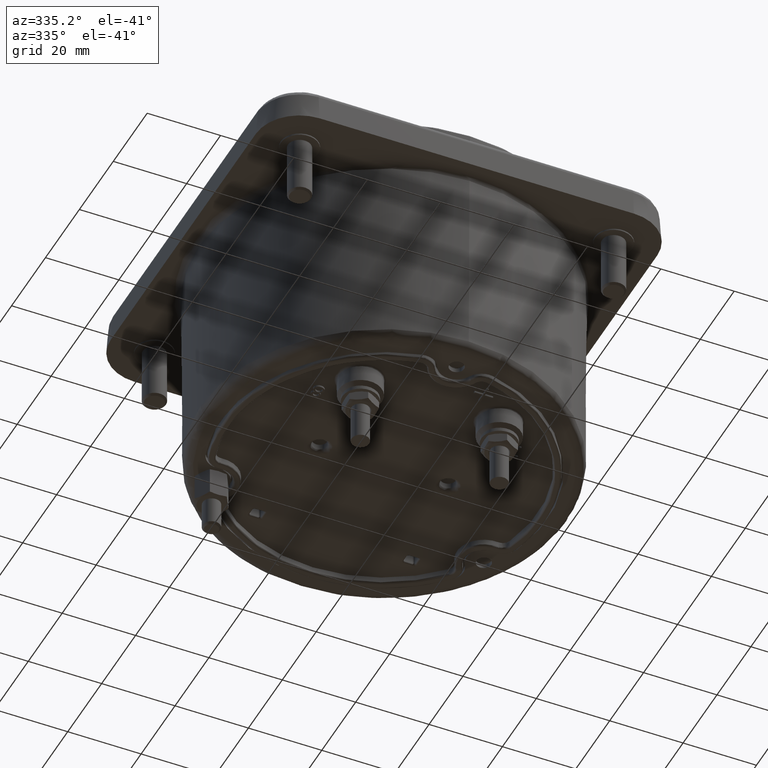
[diagram: clean part render]
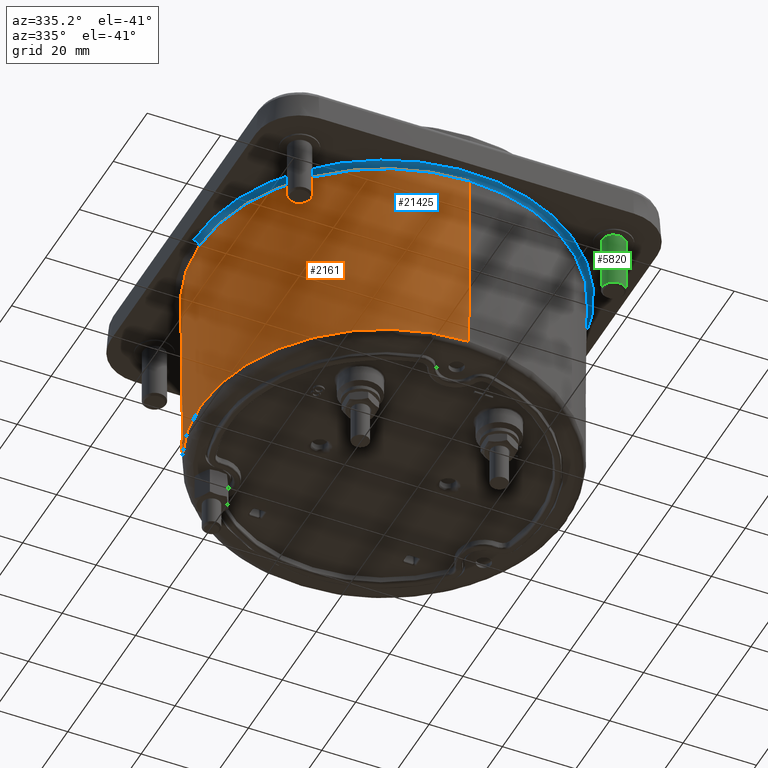
[diagram: same view with three faces highlighted in distinct colors, each labeled with its STEP entity id]
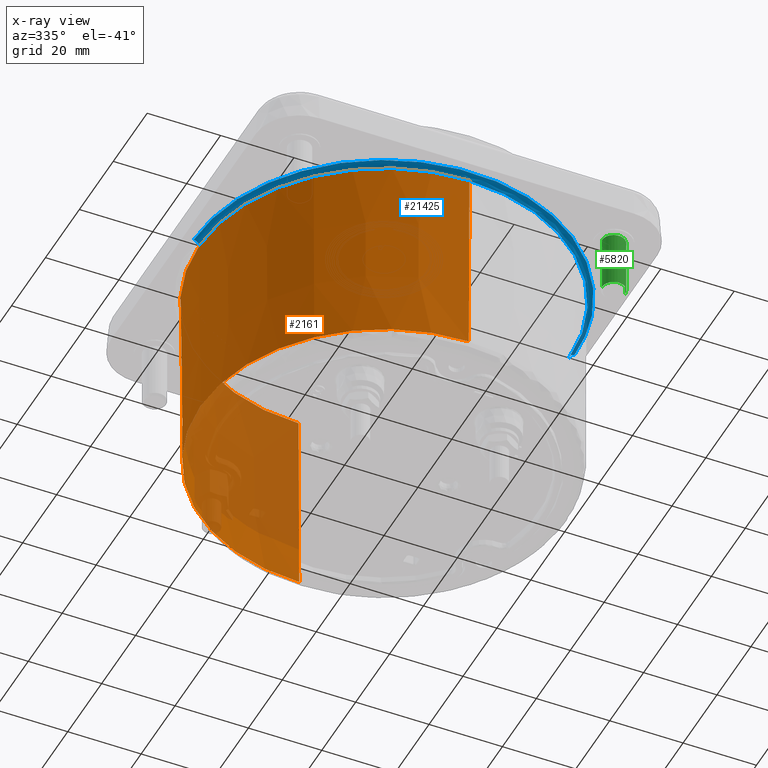
[diagram: x-ray of the same camera — body ghosted, the three highlighted faces saturated]
A machine part, auxiliary view with three faces highlighted in distinct colors.
The next image is the same camera in x-ray (body ghosted, the three faces saturated) — at least one of them is partly hidden behind the body in this view.
Their STEP definitions:

[orange] entity #2161 — the highlighted conical surface has half-angle 0.414 deg.
#9 = CARTESIAN_POINT ( 'NONE',  ( 5.023682837251794677E-15, 1.983827896406455071, 2.011482268730739875 ) ) ;
#344 = DIRECTION ( 'NONE',  ( -4.479769407304705096E-26, 6.885294834831169295E-17, 1.000000000000000000 ) ) ;
#839 = DIRECTION ( 'NONE',  ( -4.479652220600120776E-26, -0.007233083831928652230, 0.9999738409069911516 ) ) ;
#913 = CIRCLE ( 'NONE', #5798, 1.968925488800165491 ) ;
#1561 = CONICAL_SURFACE ( 'NONE', #19376, 1.983827896406452851, 0.007233146902892905600 ) ;
#1978 = LINE ( 'NONE', #9, #18068 ) ;
#2161 = ADVANCED_FACE ( 'NONE', ( #20375 ), #1561, .T. ) ;
#2924 = DIRECTION ( 'NONE',  ( 1.000000000000000000, 6.506301608588673638E-10, 1.377058966966231985E-15 ) ) ;
#3348 = ORIENTED_EDGE ( 'NONE', *, *, #6304, .F. ) ;
#3421 = EDGE_CURVE ( 'NONE', #5361, #12628, #913, .T. ) ;
#3596 = DIRECTION ( 'NONE',  ( 1.000000000000000000, 6.506283845020279635E-10, 4.301193127181230591E-15 ) ) ;
#4073 = AXIS2_PLACEMENT_3D ( 'NONE', #10477, #5033, #3596 ) ;
#4179 = CARTESIAN_POINT ( 'NONE',  ( -1.968925488791601897, -1.281036572047472376E-09, -0.04877558519283541061 ) ) ;
#4569 = DIRECTION ( 'NONE',  ( -0.000000000000000000, -0.000000000000000000, -1.000000000000000000 ) ) ;
#5033 = DIRECTION ( 'NONE',  ( 0.000000000000000000, 0.000000000000000000, 1.000000000000000000 ) ) ;
#5081 = EDGE_CURVE ( 'NONE', #12628, #5197, #12650, .T. ) ;
#5197 = VERTEX_POINT ( 'NONE', #8662 ) ;
#5261 = CARTESIAN_POINT ( 'NONE',  ( 4.755600987370747928E-15, 2.237929876409763545E-15, 2.011482268730736322 ) ) ;
#5361 = VERTEX_POINT ( 'NONE', #4179 ) ;
#5668 = AXIS2_PLACEMENT_3D ( 'NONE', #19552, #4569, #2924 ) ;
#5798 = AXIS2_PLACEMENT_3D ( 'NONE', #15067, #16291, #14641 ) ;
#6304 = EDGE_CURVE ( 'NONE', #19982, #7760, #1978, .T. ) ;
#7118 = DIRECTION ( 'NONE',  ( 1.000000000000000000, 6.506283845020280669E-10, 1.377058966966231985E-15 ) ) ;
#7760 = VERTEX_POINT ( 'NONE', #21232 ) ;
#8662 = CARTESIAN_POINT ( 'NONE',  ( 4.780733988912455801E-15, -1.983827896406450630, 2.011482268730736322 ) ) ;
#9351 = VECTOR ( 'NONE', #839, 39.37007874015748143 ) ;
#9870 = ORIENTED_EDGE ( 'NONE', *, *, #12022, .T. ) ;
#10210 = ORIENTED_EDGE ( 'NONE', *, *, #17920, .T. ) ;
#10477 = CARTESIAN_POINT ( 'NONE',  ( 4.755600987370747928E-15, 2.237929876409763545E-15, -0.04877558519283117788 ) ) ;
#10786 = CARTESIAN_POINT ( 'NONE',  ( -1.983827896406448188, -1.309943466930820863E-09, 2.011482268730736322 ) ) ;
#10881 = ORIENTED_EDGE ( 'NONE', *, *, #3421, .T. ) ;
#11714 = DIRECTION ( 'NONE',  ( 8.857972514770755345E-19, 0.007233083831928788406, 0.9999738409069911516 ) ) ;
#11763 = CARTESIAN_POINT ( 'NONE',  ( 5.022770328009211004E-15, 1.968925488800167489, -0.04877558519283117788 ) ) ;
#11936 = DIRECTION ( 'NONE',  ( 0.000000000000000000, -1.000000000000000000, 1.377058966966232133E-16 ) ) ;
#12022 = EDGE_CURVE ( 'NONE', #18108, #7760, #16486, .T. ) ;
#12046 = CARTESIAN_POINT ( 'NONE',  ( 4.780733988912455801E-15, 2.237929876356846361E-15, 2.011482268730740319 ) ) ;
#12628 = VERTEX_POINT ( 'NONE', #16502 ) ;
#12650 = LINE ( 'NONE', #17682, #9351 ) ;
#13612 = ORIENTED_EDGE ( 'NONE', *, *, #5081, .T. ) ;
#13657 = ORIENTED_EDGE ( 'NONE', *, *, #15062, .T. ) ;
#14641 = DIRECTION ( 'NONE',  ( 1.000000000000000000, 6.506283845020279635E-10, 4.301193127181230591E-15 ) ) ;
#15062 = EDGE_CURVE ( 'NONE', #19982, #5361, #20866, .T. ) ;
#15067 = CARTESIAN_POINT ( 'NONE',  ( 4.755600987370747928E-15, 2.237929876409763545E-15, -0.04877558519283117788 ) ) ;
#16291 = DIRECTION ( 'NONE',  ( 0.000000000000000000, 0.000000000000000000, 1.000000000000000000 ) ) ;
#16339 = AXIS2_PLACEMENT_3D ( 'NONE', #5261, #20471, #7118 ) ;
#16486 = CIRCLE ( 'NONE', #5668, 1.983827896406452851 ) ;
#16502 = CARTESIAN_POINT ( 'NONE',  ( 4.780733988958603375E-15, -1.968925488800163270, -0.04877558519283117788 ) ) ;
#17368 = EDGE_LOOP ( 'NONE', ( #3348, #13657, #10881, #13612, #10210, #9870 ) ) ;
#17682 = CARTESIAN_POINT ( 'NONE',  ( 4.780733988912455801E-15, -1.983827896406450630, 2.011482268730740319 ) ) ;
#17920 = EDGE_CURVE ( 'NONE', #5197, #18108, #19828, .T. ) ;
#18068 = VECTOR ( 'NONE', #11714, 39.37007874015748143 ) ;
#18108 = VERTEX_POINT ( 'NONE', #10786 ) ;
#19376 = AXIS2_PLACEMENT_3D ( 'NONE', #12046, #344, #11936 ) ;
#19552 = CARTESIAN_POINT ( 'NONE',  ( 4.755600987370747928E-15, 2.237929876409763545E-15, 2.011482268730736322 ) ) ;
#19828 = CIRCLE ( 'NONE', #16339, 1.983827896406452851 ) ;
#19982 = VERTEX_POINT ( 'NONE', #11763 ) ;
#20375 = FACE_OUTER_BOUND ( 'NONE', #17368, .T. ) ;
#20471 = DIRECTION ( 'NONE',  ( -0.000000000000000000, -0.000000000000000000, -1.000000000000000000 ) ) ;
#20866 = CIRCLE ( 'NONE', #4073, 1.968925488800165491 ) ;
#21232 = CARTESIAN_POINT ( 'NONE',  ( 5.023682837251794677E-15, 1.983827896406455071, 2.011482268730736322 ) ) ;

[blue] entity #21425 — the highlighted face is a freeform B-spline surface patch.
#23 = CARTESIAN_POINT ( 'NONE',  ( 2.003332604841752573, -0.4001849927164023435, 2.070110236220471744 ) ) ;
#133 = CARTESIAN_POINT ( 'NONE',  ( 0.7442685582431227687, -1.902480896312771952, 2.070110236220472189 ) ) ;
#215 = CARTESIAN_POINT ( 'NONE',  ( 1.983827899026260333, -3.967655791541200294, 2.011482268730736767 ) ) ;
#243 = CARTESIAN_POINT ( 'NONE',  ( 1.876533583576798003, -0.8077928446503455095, 2.070110236220472189 ) ) ;
#928 = CARTESIAN_POINT ( 'NONE',  ( -0.6903791625251196606, -1.923832779437931517, 2.070110236220472189 ) ) ;
#1045 = CARTESIAN_POINT ( 'NONE',  ( -0.3737647796328769645, -2.008398766474842834, 2.070110236220472189 ) ) ;
#1152 = CARTESIAN_POINT ( 'NONE',  ( -0.9710378116248836733, -1.799681934347626466, 2.070110236220472189 ) ) ;
#1222 =( BOUNDED_SURFACE ( )  B_SPLINE_SURFACE ( 3, 3, ( 
 ( #18264, #9951, #13658, #13340 ),
 ( #11914, #8427, #18369, #10065 ),
 ( #3287, #18474, #20352, #5357 ),
 ( #1862, #215, #20029, #20135 ) ),
 .UNSPECIFIED., .F., .F., .T. ) 
 B_SPLINE_SURFACE_WITH_KNOTS ( ( 4, 4 ),
 ( 4, 4 ),
 ( 0.000000000000000000, 1.000000000000000000 ),
 ( 0.000000000000000000, 1.000000000000000000 ),
 .UNSPECIFIED. ) 
 GEOMETRIC_REPRESENTATION_ITEM ( )  RATIONAL_B_SPLINE_SURFACE ( (
 ( 1.000000000000000000, 0.3333333333301054524, 0.3333333333301054524, 1.000000000000000000),
 ( 0.8064396365958963475, 0.2688132121960290499, 0.2688132121960290499, 0.8064396365958963475),
 ( 0.8064396365958963475, 0.2688132121960290499, 0.2688132121960290499, 0.8064396365958963475),
 ( 1.000000000000000000, 0.3333333333301054524, 0.3333333333301054524, 1.000000000000000000) ) ) 
 REPRESENTATION_ITEM ( '' )  SURFACE ( )  );
#1249 = CARTESIAN_POINT ( 'NONE',  ( -2.011224293276880015, -0.3582861049801179254, 2.070110236220472189 ) ) ;
#1357 = CARTESIAN_POINT ( 'NONE',  ( -0.3788520813355275574, -2.007446990985253699, 2.070110236220472189 ) ) ;
#1456 = CARTESIAN_POINT ( 'NONE',  ( 1.105221622687248217, -1.718104688078582853, 2.070110236220472189 ) ) ;
#1559 = CARTESIAN_POINT ( 'NONE',  ( 0.7481225039808152566, -1.900968610835486627, 2.070110236220472633 ) ) ;
#1678 = CARTESIAN_POINT ( 'NONE',  ( 0.3448347633429154624, -2.013594818917828544, 2.070110236220471744 ) ) ;
#1783 = CARTESIAN_POINT ( 'NONE',  ( 0.3707111310161312345, -2.008964654954927820, 2.070110236220472189 ) ) ;
#1862 = CARTESIAN_POINT ( 'NONE',  ( 1.983827896406368252, 1.309948231300291511E-09, 2.011482268730736767 ) ) ;
#1890 = CARTESIAN_POINT ( 'NONE',  ( 1.955788023540896425, -0.5966525252301194682, 2.070110236220472633 ) ) ;
#2579 = CARTESIAN_POINT ( 'NONE',  ( -1.121571604575167358, -1.707467909705093767, 2.070110236220472633 ) ) ;
#2695 = CARTESIAN_POINT ( 'NONE',  ( -2.013594557046480382, -0.3448361785432085824, 2.070110236220472189 ) ) ;
#2803 = CARTESIAN_POINT ( 'NONE',  ( -1.394678649436074336, -1.494393066035612838, 2.070110236220473077 ) ) ;
#2871 = CARTESIAN_POINT ( 'NONE',  ( 2.042881469688273555, 1.329159158463107903E-09, 2.011055118110236517 ) ) ;
#2907 = CARTESIAN_POINT ( 'NONE',  ( -1.125251828600355886, -1.705044946876235423, 2.070110236220472633 ) ) ;
#3005 = CARTESIAN_POINT ( 'NONE',  ( -0.4285437248690475709, -1.997551800392993959, 2.070110236220472189 ) ) ;
#3104 = CARTESIAN_POINT ( 'NONE',  ( 2.008018959206372855, -0.3757999609761855098, 2.070110236220472189 ) ) ;
#3206 = CARTESIAN_POINT ( 'NONE',  ( 0.7499681759424581262, -1.900241300414075463, 2.070110236220472189 ) ) ;
#3281 = CARTESIAN_POINT ( 'NONE',  ( -2.042881469688264673, -1.329153877629970610E-09, 2.070110236220472189 ) ) ;
#3287 = CARTESIAN_POINT ( 'NONE',  ( 1.984076682767186295, 1.310112507998461509E-09, 2.045876983112522307 ) ) ;
#3312 = CARTESIAN_POINT ( 'NONE',  ( 1.235916453043782726, -1.632717692842917234, 2.070110236220473077 ) ) ;
#3426 = CARTESIAN_POINT ( 'NONE',  ( 0.1557875424540580700, -2.038619442716527175, 2.070110236220472189 ) ) ;
#3530 = CARTESIAN_POINT ( 'NONE',  ( 0.5332552053338290854, -1.974016218238910048, 2.070110236220473077 ) ) ;
#4283 = CARTESIAN_POINT ( 'NONE',  ( 2.042881469688272222, 1.329156158074610405E-09, 2.070110236220472189 ) ) ;
#4331 = CARTESIAN_POINT ( 'NONE',  ( -2.010010018804857967, -0.3650084123850552142, 2.070110236220472189 ) ) ;
#4442 = CARTESIAN_POINT ( 'NONE',  ( -1.773291169850150784, -1.015356528543466474, 2.070110236220471744 ) ) ;
#4518 = DIRECTION ( 'NONE',  ( 6.506285069667078454E-10, -1.000000000000000000, 0.000000000000000000 ) ) ;
#4552 = CARTESIAN_POINT ( 'NONE',  ( -2.009483370619587816, -0.3678888321699896879, 2.070110236220472189 ) ) ;
#4652 = CARTESIAN_POINT ( 'NONE',  ( -1.712240843068142171, -1.114271336729472539, 2.070110236220472189 ) ) ;
#4748 = CARTESIAN_POINT ( 'NONE',  ( 0.3179124374540432951, -2.018102432714424133, 2.070110236220472633 ) ) ;
#4857 = CARTESIAN_POINT ( 'NONE',  ( 0.3698088781557154481, -2.009130903961321213, 2.070110236220472189 ) ) ;
#4967 = CARTESIAN_POINT ( 'NONE',  ( 1.494393066037198459, -1.394678649433133799, 2.070110236220472633 ) ) ;
#5070 = CARTESIAN_POINT ( 'NONE',  ( 2.008598695396134559, -0.3726887335864145223, 2.070110236220472189 ) ) ;
#5174 = CARTESIAN_POINT ( 'NONE',  ( 2.042880192834984676, -0.1249387673874906429, 2.070110236220472633 ) ) ;
#5197 = VERTEX_POINT ( 'NONE', #8662 ) ;
#5227 = AXIS2_PLACEMENT_3D ( 'NONE', #13694, #18515, #8784 ) ;
#5261 = CARTESIAN_POINT ( 'NONE',  ( 4.755600987370747928E-15, 2.237929876409763545E-15, 2.011482268730736322 ) ) ;
#5357 = CARTESIAN_POINT ( 'NONE',  ( -1.984076682767176747, -1.290894854865708978E-09, 2.045876983112522307 ) ) ;
#5612 = CIRCLE ( 'NONE', #17492, 0.05905511811023627516 ) ;
#5971 = CARTESIAN_POINT ( 'NONE',  ( -2.042881469647618076, -0.06247283608517428810, 2.070110236220472633 ) ) ;
#6080 = CARTESIAN_POINT ( 'NONE',  ( -2.018101943887906646, -0.3179150791612647131, 2.070110236220472189 ) ) ;
#6121 = CARTESIAN_POINT ( 'NONE',  ( 1.983827896406457514, 1.309948189355410421E-09, 2.011482268730736322 ) ) ;
#6193 = CARTESIAN_POINT ( 'NONE',  ( -1.996722619072802463, -0.4368693160643514761, 2.070110236220472189 ) ) ;
#6391 = CARTESIAN_POINT ( 'NONE',  ( -1.130765448198850942, -1.701402250907160463, 2.070110236220472633 ) ) ;
#6491 = CARTESIAN_POINT ( 'NONE',  ( 1.092514872302773110, -1.726242185399991413, 2.070110236220472633 ) ) ;
#6606 = CARTESIAN_POINT ( 'NONE',  ( 0.6433872528040760486, -1.939430170087698135, 2.070110236220472189 ) ) ;
#6717 = CARTESIAN_POINT ( 'NONE',  ( 2.007446990985332302, -0.3788520813354092631, 2.070110236220471744 ) ) ;
#6824 = CARTESIAN_POINT ( 'NONE',  ( 1.893845591453264587, -0.7659944184719689186, 2.070110236220472633 ) ) ;
#6932 = CARTESIAN_POINT ( 'NONE',  ( 1.639883210596662311, -1.219175707345041992, 2.070110236220472189 ) ) ;
#7118 = DIRECTION ( 'NONE',  ( 1.000000000000000000, 6.506283845020280669E-10, 1.377058966966231985E-15 ) ) ;
#7441 = EDGE_CURVE ( 'NONE', #9128, #5197, #17811, .T. ) ;
#7603 = CARTESIAN_POINT ( 'NONE',  ( -0.3757999609762522342, -2.008018959206323117, 2.070110236220472189 ) ) ;
#7714 = CARTESIAN_POINT ( 'NONE',  ( -0.3726887335863753314, -2.008598695396127454, 2.070110236220472189 ) ) ;
#7826 = CARTESIAN_POINT ( 'NONE',  ( -1.544248719439014428, -1.344819891879077467, 2.070110236220472189 ) ) ;
#7929 = CARTESIAN_POINT ( 'NONE',  ( -2.038618325398769304, -0.1557935806420024105, 2.070110236220472633 ) ) ;
#8031 = CARTESIAN_POINT ( 'NONE',  ( -1.316454797519543085, -1.564954769511171184, 2.070110236220472189 ) ) ;
#8069 = ORIENTED_EDGE ( 'NONE', *, *, #19418, .F. ) ;
#8134 = CARTESIAN_POINT ( 'NONE',  ( 1.984978912902296111, -0.4849692473790852554, 2.070110236220471744 ) ) ;
#8237 = CARTESIAN_POINT ( 'NONE',  ( 1.110653324258300323, -1.714590005561088093, 2.070110236220472189 ) ) ;
#8346 = CARTESIAN_POINT ( 'NONE',  ( 1.114271336729285355, -1.712240843068210117, 2.070110236220472633 ) ) ;
#8427 = CARTESIAN_POINT ( 'NONE',  ( 2.008485858200872887, -4.016971709809492808, 2.070110236220473521 ) ) ;
#8452 = CARTESIAN_POINT ( 'NONE',  ( 1.701402250907502856, -1.130765448198228329, 2.070110236220472189 ) ) ;
#8560 = CARTESIAN_POINT ( 'NONE',  ( 0.4368693160652958873, -1.996722619072617277, 2.070110236220473077 ) ) ;
#8593 = DIRECTION ( 'NONE',  ( -1.000000000000000000, -6.506283845020274466E-10, 0.000000000000000000 ) ) ;
#8662 = CARTESIAN_POINT ( 'NONE',  ( 4.780733988912455801E-15, -1.983827896406450630, 2.011482268730736322 ) ) ;
#8784 = DIRECTION ( 'NONE',  ( 1.000000000000000000, 6.506283845020280669E-10, 1.377058966966231985E-15 ) ) ;
#8800 = EDGE_CURVE ( 'NONE', #14826, #9128, #5612, .T. ) ;
#9128 = VERTEX_POINT ( 'NONE', #6121 ) ;
#9232 = CARTESIAN_POINT ( 'NONE',  ( -2.026184154779658186, -0.2639878943648609755, 2.070110236220473077 ) ) ;
#9290 = EDGE_CURVE ( 'NONE', #13581, #18108, #19618, .T. ) ;
#9350 = CARTESIAN_POINT ( 'NONE',  ( -1.920113334217594447, -0.6978737373693809642, 2.070110236220472189 ) ) ;
#9452 = CARTESIAN_POINT ( 'NONE',  ( -1.974016218239233567, -0.5332552053321805152, 2.070110236220471744 ) ) ;
#9561 = CARTESIAN_POINT ( 'NONE',  ( -0.7799711020609035872, -1.888159406802952356, 2.070110236220473077 ) ) ;
#9663 = CARTESIAN_POINT ( 'NONE',  ( -0.3859691339166563817, -2.006096597241381563, 2.070110236220473077 ) ) ;
#9768 = CARTESIAN_POINT ( 'NONE',  ( 0.2639833657239055720, -2.026184992767976034, 2.070110236220472189 ) ) ;
#9951 = CARTESIAN_POINT ( 'NONE',  ( 2.042881472386154140, -4.085762938067161620, 2.070110236220472633 ) ) ;
#9980 = CARTESIAN_POINT ( 'NONE',  ( 1.015356528539348213, -1.773291169851531013, 2.070110236220472189 ) ) ;
#10065 = CARTESIAN_POINT ( 'NONE',  ( -2.008485855548407528, -1.306776161497914866E-09, 2.070110236220473521 ) ) ;
#10092 = CARTESIAN_POINT ( 'NONE',  ( 1.705044946876436374, -1.125251828599996395, 2.070110236220472189 ) ) ;
#10198 = CARTESIAN_POINT ( 'NONE',  ( 1.852268121428690906, -0.8629098314627251520, 2.070110236220472633 ) ) ;
#10786 = CARTESIAN_POINT ( 'NONE',  ( -1.983827896406448188, -1.309943466930820863E-09, 2.011482268730736322 ) ) ;
#10840 = DIRECTION ( 'NONE',  ( 1.000000000000000000, 6.506285069667073284E-10, 0.000000000000000000 ) ) ;
#10878 = CARTESIAN_POINT ( 'NONE',  ( -0.8629098314598024899, -1.852268121430152847, 2.070110236220472189 ) ) ;
#10991 = CARTESIAN_POINT ( 'NONE',  ( -1.742263465831014102, -1.066970251328139607, 2.070110236220472189 ) ) ;
#11108 = CARTESIAN_POINT ( 'NONE',  ( -1.904740289654653695, -0.7384850524079445977, 2.070110236220472189 ) ) ;
#11210 = CARTESIAN_POINT ( 'NONE',  ( -1.900241300414105661, -0.7499681759423524330, 2.070110236220472189 ) ) ;
#11309 = CARTESIAN_POINT ( 'NONE',  ( -1.711088321330249240, -1.116040419668405281, 2.070110236220472189 ) ) ;
#11410 = CARTESIAN_POINT ( 'NONE',  ( 1.799681934345674028, -0.9710378116287806671, 2.070110236220472189 ) ) ;
#11513 = CARTESIAN_POINT ( 'NONE',  ( 0.6978737373701058289, -1.920113334217454337, 2.070110236220472189 ) ) ;
#11619 = CARTESIAN_POINT ( 'NONE',  ( 1.708702197063427297, -1.119690164145878075, 2.070110236220472189 ) ) ;
#11836 = CARTESIAN_POINT ( 'NONE',  ( 0.3650080408949836763, -2.010010087546085789, 2.070110236220471744 ) ) ;
#11914 = CARTESIAN_POINT ( 'NONE',  ( 2.008485855548416854, 1.326230185416033774E-09, 2.070110236220473521 ) ) ;
#11916 = ORIENTED_EDGE ( 'NONE', *, *, #8800, .F. ) ;
#12629 = CARTESIAN_POINT ( 'NONE',  ( -1.831287150513315254, -0.9100311596427431704, 2.070110236220472189 ) ) ;
#12741 = CARTESIAN_POINT ( 'NONE',  ( -2.009130884087158009, -0.3698089855593023056, 2.070110236220472633 ) ) ;
#12856 = CARTESIAN_POINT ( 'NONE',  ( -0.8077928446486398739, -1.876533583577645992, 2.070110236220472189 ) ) ;
#12950 = CARTESIAN_POINT ( 'NONE',  ( -1.909948963333746308, -0.7249720948604549964, 2.070110236220472189 ) ) ;
#13032 = ORIENTED_EDGE ( 'NONE', *, *, #7441, .F. ) ;
#13054 = CARTESIAN_POINT ( 'NONE',  ( -1.219175707348902682, -1.639883210594581753, 2.070110236220472189 ) ) ;
#13149 = CARTESIAN_POINT ( 'NONE',  ( 2.031511808129810248, -0.2488762166883420890, 2.070110236220472189 ) ) ;
#13257 = CARTESIAN_POINT ( 'NONE',  ( 0.8161558320137728417, -1.874038972725468932, 2.070110236220472189 ) ) ;
#13340 = CARTESIAN_POINT ( 'NONE',  ( -2.042881469688264673, -1.329154932784181112E-09, 2.070110236220472633 ) ) ;
#13474 = CARTESIAN_POINT ( 'NONE',  ( 2.006096597241529889, -0.3859691339164213475, 2.070110236220472189 ) ) ;
#13579 = CARTESIAN_POINT ( 'NONE',  ( 1.747656180639997725, -1.060108662984764472, 2.070110236220472189 ) ) ;
#13581 = VERTEX_POINT ( 'NONE', #3281 ) ;
#13658 = CARTESIAN_POINT ( 'NONE',  ( -2.042881467029950660, -4.085762940745258476, 2.070110236220472633 ) ) ;
#13694 = CARTESIAN_POINT ( 'NONE',  ( 4.755600987370747928E-15, 2.237929876409763545E-15, 2.011482268730736322 ) ) ;
#14369 = CARTESIAN_POINT ( 'NONE',  ( -0.2488762166930676978, -2.031511808129802699, 2.070110236220472633 ) ) ;
#14478 = CARTESIAN_POINT ( 'NONE',  ( -2.042881469688264673, -1.329153877629970610E-09, 2.070110236220472189 ) ) ;
#14587 = CARTESIAN_POINT ( 'NONE',  ( -1.900968610835496175, -0.7481225039807496424, 2.070110236220471744 ) ) ;
#14681 = CARTESIAN_POINT ( 'NONE',  ( -0.4001849927168594223, -2.003332604841471021, 2.070110236220472189 ) ) ;
#14787 = CARTESIAN_POINT ( 'NONE',  ( 0.7249720948608480153, -1.909948963333672145, 2.070110236220472189 ) ) ;
#14826 = VERTEX_POINT ( 'NONE', #4283 ) ;
#14895 = CARTESIAN_POINT ( 'NONE',  ( 1.116040419668381967, -1.711088321330239914, 2.070110236220472189 ) ) ;
#15006 = CARTESIAN_POINT ( 'NONE',  ( 1.997551800393515542, -0.4285437248681934208, 2.070110236220472189 ) ) ;
#15113 = CARTESIAN_POINT ( 'NONE',  ( 0.9100311596372501199, -1.831287150515155115, 2.070110236220472189 ) ) ;
#15217 = CARTESIAN_POINT ( 'NONE',  ( 0.06246938569206661462, -2.042882108114909112, 2.070110236220472633 ) ) ;
#15761 = ORIENTED_EDGE ( 'NONE', *, *, #9290, .T. ) ;
#15892 = CARTESIAN_POINT ( 'NONE',  ( -0.7538986943150615128, -1.898685244963399299, 2.070110236220472189 ) ) ;
#16011 = CARTESIAN_POINT ( 'NONE',  ( -1.169031679863243411, -1.675499044560103012, 2.070110236220472633 ) ) ;
#16117 = CARTESIAN_POINT ( 'NONE',  ( -1.119690164145946687, -1.708702197063385553, 2.070110236220472189 ) ) ;
#16226 = CARTESIAN_POINT ( 'NONE',  ( -0.7559844347403924525, -1.897855857671596924, 2.070110236220473077 ) ) ;
#16338 = CARTESIAN_POINT ( 'NONE',  ( -0.7599903085841351880, -1.896255371954701952, 2.070110236220472633 ) ) ;
#16339 = AXIS2_PLACEMENT_3D ( 'NONE', #5261, #20471, #7118 ) ;
#16438 = CARTESIAN_POINT ( 'NONE',  ( 1.707467909705198572, -1.121571604574985948, 2.070110236220472633 ) ) ;
#16445 = AXIS2_PLACEMENT_3D ( 'NONE', #20524, #19085, #8593 ) ;
#16537 = CARTESIAN_POINT ( 'NONE',  ( 1.066970251325741303, -1.742263465831821456, 2.070110236220472189 ) ) ;
#16649 = CARTESIAN_POINT ( 'NONE',  ( 1.898685244963387087, -0.7538986943150971509, 2.070110236220472189 ) ) ;
#16744 = CARTESIAN_POINT ( 'NONE',  ( 0.3678886186263803371, -2.009483410134102144, 2.070110236220472189 ) ) ;
#16825 = FACE_OUTER_BOUND ( 'NONE', #20554, .T. ) ;
#16851 = CARTESIAN_POINT ( 'NONE',  ( 1.888159406802500051, -0.7799711020618169677, 2.070110236220471744 ) ) ;
#17087 = B_SPLINE_CURVE_WITH_KNOTS ( 'NONE', 3,
 ( #14478, #5971, #7929, #9232, #6080, #2695, #1249, #4331, #4552, #12741, #19305, #6193, #9452, #17543, #9350, #12950, #11108, #21191, #14587, #11210, #19633, #12629, #4442, #10991, #19419, #17774, #17883, #4652, #11309, #19733, #7826, #2803, #8031, #13054, #16011, #21291, #6391, #2907, #2579, #16117, #21386, #1152, #10878, #12856, #9561, #19535, #16338, #16226, #15892, #928, #17659, #17982, #3005, #14681, #9663, #1357, #7603, #1045, #7714, #14369, #21083, #15217, #3426, #9768, #4748, #1678, #18500, #11836, #16744, #4857, #1783, #8560, #3530, #6606, #11513, #14787, #20163, #133, #1559, #3206, #13257, #15113, #9980, #16537, #6491, #1456, #8237, #8346, #14895, #3312, #21600, #4967, #20055, #6932, #18188, #19946, #8452, #10092, #16438, #11619, #13579, #11410, #10198, #243, #16851, #6824, #18087, #18397, #16649, #18291, #1890, #8134, #15006, #23, #13474, #6717, #3104, #21491, #5070, #13149, #5174, #19842 ),
 .UNSPECIFIED., .F., .F.,
 ( 4, 1, 1, 1, 1, 1, 1, 2, 2, 1, 1, 1, 1, 1, 2, 2, 1, 1, 1, 1, 1, 2, 2, 2, 1, 1, 1, 1, 1, 2, 2, 1, 1, 1, 1, 1, 2, 2, 1, 1, 1, 1, 1, 1, 2, 2, 2, 1, 1, 1, 1, 1, 1, 2, 2, 1, 1, 1, 1, 1, 2, 2, 1, 1, 1, 1, 1, 2, 2, 2, 1, 1, 1, 1, 1, 2, 2, 1, 1, 1, 1, 1, 2, 2, 1, 1, 1, 1, 1, 1, 2, 2, 4 ),
 ( 0.000000000000000000, 0.01562499999999998959, 0.02343749999999998612, 0.02734374999999998265, 0.02929687499999998612, 0.03027343749999997918, 0.03076171874999997224, 0.03100585937499996877, 0.03124999999999996531, 0.04687499999999943101, 0.05468749999999916039, 0.05859374999999904937, 0.06054687499999899386, 0.06152343749999896610, 0.06201171874999895223, 0.06249999999999893835, 0.07812499999999827915, 0.08593749999999797384, 0.08984374999999782119, 0.09179687499999771017, 0.09277343749999765465, 0.09326171874999764078, 0.09374999999999762690, 0.1249999999999960865, 0.1406249999999953371, 0.1484374999999949485, 0.1523437499999947542, 0.1542968749999946709, 0.1552734374999946709, 0.1557617187499946709, 0.1562499999999946709, 0.1718749999999949762, 0.1796874999999951428, 0.1835937499999952260, 0.1855468749999952538, 0.1865234374999952816, 0.1870117187499952816, 0.1874999999999952816, 0.2031249999999949485, 0.2109374999999948097, 0.2148437499999947542, 0.2167968749999947264, 0.2177734374999947264, 0.2182617187499947264, 0.2185058593749947264, 0.2187499999999947264, 0.2499999999999947264, 0.2656249999999947264, 0.2734374999999947264, 0.2773437499999947264, 0.2792968749999947264, 0.2802734374999947264, 0.2807617187499947264, 0.2810058593749947264, 0.2812499999999947264, 0.2968749999999952260, 0.3046874999999955036, 0.3085937499999956701, 0.3105468749999957256, 0.3115234374999957812, 0.3120117187499957812, 0.3124999999999957812, 0.3281249999999961142, 0.3359374999999962808, 0.3398437499999963363, 0.3417968749999963918, 0.3427734374999963918, 0.3432617187499963918, 0.3437499999999963918, 0.3749999999999966138, 0.3906249999999967248, 0.3984374999999967804, 0.4023437499999967804, 0.4042968749999967804, 0.4052734374999967804, 0.4057617187499967804, 0.4062499999999967804, 0.4218749999999971134, 0.4296874999999972800, 0.4335937499999973910, 0.4355468749999974465, 0.4365234374999975020, 0.4370117187499975020, 0.4374999999999975020, 0.4531249999999980571, 0.4609374999999982792, 0.4648437499999983902, 0.4667968749999984457, 0.4677734374999984457, 0.4682617187499984457, 0.4685058593749984457, 0.4687499999999984457, 0.5000000000000000000 ),
 .UNSPECIFIED. ) ;
#17492 = AXIS2_PLACEMENT_3D ( 'NONE', #2871, #4518, #10840 ) ;
#17543 = CARTESIAN_POINT ( 'NONE',  ( -1.939430170087940164, -0.6433872528028379278, 2.070110236220472189 ) ) ;
#17659 = CARTESIAN_POINT ( 'NONE',  ( -0.5966525252320762363, -1.955788023539714704, 2.070110236220472189 ) ) ;
#17774 = CARTESIAN_POINT ( 'NONE',  ( -1.718104688078356812, -1.105221622687907246, 2.070110236220472189 ) ) ;
#17811 = CIRCLE ( 'NONE', #5227, 1.983827896406452851 ) ;
#17883 = CARTESIAN_POINT ( 'NONE',  ( -1.714590005560955976, -1.110653324258677577, 2.070110236220471744 ) ) ;
#17920 = EDGE_CURVE ( 'NONE', #5197, #18108, #19828, .T. ) ;
#17982 = CARTESIAN_POINT ( 'NONE',  ( -0.4849692473805523041, -1.984978912901409931, 2.070110236220472633 ) ) ;
#18087 = CARTESIAN_POINT ( 'NONE',  ( 1.896255371954573610, -0.7599903085844089690, 2.070110236220472189 ) ) ;
#18108 = VERTEX_POINT ( 'NONE', #10786 ) ;
#18188 = CARTESIAN_POINT ( 'NONE',  ( 1.675499044561318929, -1.169031679860992323, 2.070110236220473077 ) ) ;
#18264 = CARTESIAN_POINT ( 'NONE',  ( 2.042881469688274443, 1.348942033058482781E-09, 2.070110236220472633 ) ) ;
#18291 = CARTESIAN_POINT ( 'NONE',  ( 1.923832779438609863, -0.6903791625240016661, 2.070110236220472189 ) ) ;
#18369 = CARTESIAN_POINT ( 'NONE',  ( -2.008485852934850602, -4.016971712442499509, 2.070110236220473521 ) ) ;
#18397 = CARTESIAN_POINT ( 'NONE',  ( 1.897855857671536750, -0.7559844347405313414, 2.070110236220472633 ) ) ;
#18474 = CARTESIAN_POINT ( 'NONE',  ( 1.984076685387407002, -3.968153364262677396, 2.045876983112522307 ) ) ;
#18500 = CARTESIAN_POINT ( 'NONE',  ( 0.3582853737933025529, -2.011224428577075951, 2.070110236220471744 ) ) ;
#18515 = DIRECTION ( 'NONE',  ( -0.000000000000000000, -0.000000000000000000, -1.000000000000000000 ) ) ;
#18594 = ORIENTED_EDGE ( 'NONE', *, *, #17920, .F. ) ;
#19085 = DIRECTION ( 'NONE',  ( -6.506283845020279635E-10, 1.000000000000000000, 0.000000000000000000 ) ) ;
#19305 = CARTESIAN_POINT ( 'NONE',  ( -2.008964654954926488, -0.3707111310161385065, 2.070110236220472189 ) ) ;
#19418 = EDGE_CURVE ( 'NONE', #13581, #14826, #17087, .T. ) ;
#19419 = CARTESIAN_POINT ( 'NONE',  ( -1.726242185399557982, -1.092514872304055196, 2.070110236220472189 ) ) ;
#19535 = CARTESIAN_POINT ( 'NONE',  ( -0.7659944184714962967, -1.893845591453493515, 2.070110236220472633 ) ) ;
#19618 = CIRCLE ( 'NONE', #16445, 0.05905511811023627516 ) ;
#19633 = CARTESIAN_POINT ( 'NONE',  ( -1.874038972724415553, -0.8161558320169089997, 2.070110236220472189 ) ) ;
#19733 = CARTESIAN_POINT ( 'NONE',  ( -1.632717692842140522, -1.235916453041822516, 2.070110236220473077 ) ) ;
#19828 = CIRCLE ( 'NONE', #16339, 1.983827896406452851 ) ;
#19842 = CARTESIAN_POINT ( 'NONE',  ( 2.042881469688272222, 1.329156158074610405E-09, 2.070110236220472189 ) ) ;
#19946 = CARTESIAN_POINT ( 'NONE',  ( 1.692844864899470503, -1.143583545519123446, 2.070110236220472189 ) ) ;
#20029 = CARTESIAN_POINT ( 'NONE',  ( -1.983827893824888333, -3.967655794141881298, 2.011482268730736767 ) ) ;
#20055 = CARTESIAN_POINT ( 'NONE',  ( 1.564954769513941635, -1.316454797514395869, 2.070110236220472189 ) ) ;
#20135 = CARTESIAN_POINT ( 'NONE',  ( -1.983827896406358704, -1.290732987336748533E-09, 2.011482268730736767 ) ) ;
#20163 = CARTESIAN_POINT ( 'NONE',  ( 0.7384850524081502110, -1.904740289654617058, 2.070110236220472633 ) ) ;
#20352 = CARTESIAN_POINT ( 'NONE',  ( -1.984076680185383079, -3.968153366863684806, 2.045876983112522307 ) ) ;
#20471 = DIRECTION ( 'NONE',  ( -0.000000000000000000, -0.000000000000000000, -1.000000000000000000 ) ) ;
#20524 = CARTESIAN_POINT ( 'NONE',  ( -2.042881469688263785, -1.329154432422529730E-09, 2.011055118110236517 ) ) ;
#20554 = EDGE_LOOP ( 'NONE', ( #11916, #8069, #15761, #18594, #13032 ) ) ;
#21083 = CARTESIAN_POINT ( 'NONE',  ( -0.1249387673966511625, -2.042880192834979347, 2.070110236220472633 ) ) ;
#21191 = CARTESIAN_POINT ( 'NONE',  ( -1.902480896312791936, -0.7442685582430005331, 2.070110236220472633 ) ) ;
#21291 = CARTESIAN_POINT ( 'NONE',  ( -1.143583545520328926, -1.692844864898815915, 2.070110236220472189 ) ) ;
#21386 = CARTESIAN_POINT ( 'NONE',  ( -1.060108662982536920, -1.747656180641109946, 2.070110236220472189 ) ) ;
#21425 = ADVANCED_FACE ( 'NONE', ( #16825 ), #1222, .F. ) ;
#21491 = CARTESIAN_POINT ( 'NONE',  ( 2.008398766474870811, -0.3737647796328446015, 2.070110236220471744 ) ) ;
#21600 = CARTESIAN_POINT ( 'NONE',  ( 1.344819891875927320, -1.544248719444899720, 2.070110236220473077 ) ) ;

[green] entity #5820 — the highlighted cylindrical surface (edge-blend (fillet) strip) has radius 3.15 mm, axis along (0, 0, -1).
#99 = CARTESIAN_POINT ( 'NONE',  ( 1.685039371175070855, -1.685039368982401697, 1.448818897637795367 ) ) ;
#251 = EDGE_CURVE ( 'NONE', #17520, #465, #20358, .T. ) ;
#307 = FACE_OUTER_BOUND ( 'NONE', #9458, .T. ) ;
#333 = DIRECTION ( 'NONE',  ( 0.000000000000000000, 0.000000000000000000, -1.000000000000000000 ) ) ;
#465 = VERTEX_POINT ( 'NONE', #10756 ) ;
#1165 = AXIS2_PLACEMENT_3D ( 'NONE', #6387, #4548, #9861 ) ;
#1876 = CARTESIAN_POINT ( 'NONE',  ( 1.809055119206566919, -1.685039368982401697, 2.295275590551181022 ) ) ;
#3501 = DIRECTION ( 'NONE',  ( -1.000000000000000000, 0.000000000000000000, 0.000000000000000000 ) ) ;
#3707 = DIRECTION ( 'NONE',  ( -1.000000000000000000, 0.000000000000000000, 0.000000000000000000 ) ) ;
#4409 = ORIENTED_EDGE ( 'NONE', *, *, #10235, .T. ) ;
#4548 = DIRECTION ( 'NONE',  ( 0.000000000000000000, 0.000000000000000000, -1.000000000000000000 ) ) ;
#4564 = ORIENTED_EDGE ( 'NONE', *, *, #7729, .F. ) ;
#5820 = ADVANCED_FACE ( 'NONE', ( #307 ), #13646, .T. ) ;
#6387 = CARTESIAN_POINT ( 'NONE',  ( 1.685039371175070855, -1.685039368982401697, 2.055118110236220819 ) ) ;
#7582 = AXIS2_PLACEMENT_3D ( 'NONE', #12009, #18674, #3707 ) ;
#7729 = EDGE_CURVE ( 'NONE', #19696, #465, #12036, .T. ) ;
#7766 = CARTESIAN_POINT ( 'NONE',  ( 1.561023623143574790, -1.685039368982401697, 2.055118110236220819 ) ) ;
#8213 = ORIENTED_EDGE ( 'NONE', *, *, #251, .T. ) ;
#9458 = EDGE_LOOP ( 'NONE', ( #4564, #14015, #4409, #8213 ) ) ;
#9861 = DIRECTION ( 'NONE',  ( -1.000000000000000000, 0.000000000000000000, 0.000000000000000000 ) ) ;
#10235 = EDGE_CURVE ( 'NONE', #16175, #17520, #13691, .T. ) ;
#10756 = CARTESIAN_POINT ( 'NONE',  ( 1.809055119203506701, -1.685039368982401697, 1.448818897637795367 ) ) ;
#10923 = AXIS2_PLACEMENT_3D ( 'NONE', #99, #13443, #3501 ) ;
#11371 = EDGE_CURVE ( 'NONE', #19696, #16175, #20009, .T. ) ;
#12009 = CARTESIAN_POINT ( 'NONE',  ( 1.685039371175070855, -1.685039368982401697, 2.295275590551181022 ) ) ;
#12036 = LINE ( 'NONE', #1876, #18854 ) ;
#13082 = CARTESIAN_POINT ( 'NONE',  ( 1.561023623146635009, -1.685039368982401697, 1.448818897637795367 ) ) ;
#13443 = DIRECTION ( 'NONE',  ( -0.000000000000000000, -0.000000000000000000, 1.000000000000000000 ) ) ;
#13646 = CYLINDRICAL_SURFACE ( 'NONE', #7582, 0.1240157480314960647 ) ;
#13691 = LINE ( 'NONE', #15543, #19302 ) ;
#14015 = ORIENTED_EDGE ( 'NONE', *, *, #11371, .T. ) ;
#15438 = DIRECTION ( 'NONE',  ( 0.000000000000000000, 0.000000000000000000, -1.000000000000000000 ) ) ;
#15543 = CARTESIAN_POINT ( 'NONE',  ( 1.561023623143574790, -1.685039368982401697, 2.295275590551181022 ) ) ;
#16175 = VERTEX_POINT ( 'NONE', #7766 ) ;
#17520 = VERTEX_POINT ( 'NONE', #13082 ) ;
#18674 = DIRECTION ( 'NONE',  ( 0.000000000000000000, 0.000000000000000000, -1.000000000000000000 ) ) ;
#18854 = VECTOR ( 'NONE', #333, 39.37007874015748143 ) ;
#19302 = VECTOR ( 'NONE', #15438, 39.37007874015748143 ) ;
#19696 = VERTEX_POINT ( 'NONE', #20350 ) ;
#20009 = CIRCLE ( 'NONE', #1165, 0.1240157480314960647 ) ;
#20350 = CARTESIAN_POINT ( 'NONE',  ( 1.809055119206566919, -1.685039368982401697, 2.055118110236220819 ) ) ;
#20358 = CIRCLE ( 'NONE', #10923, 0.1240157480314960647 ) ;